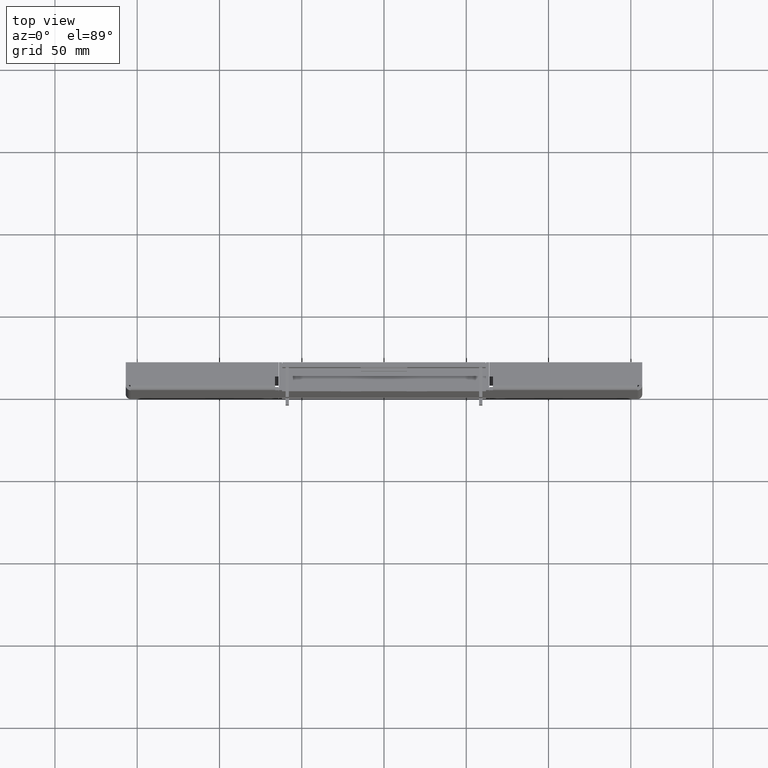
[diagram: clean part render]
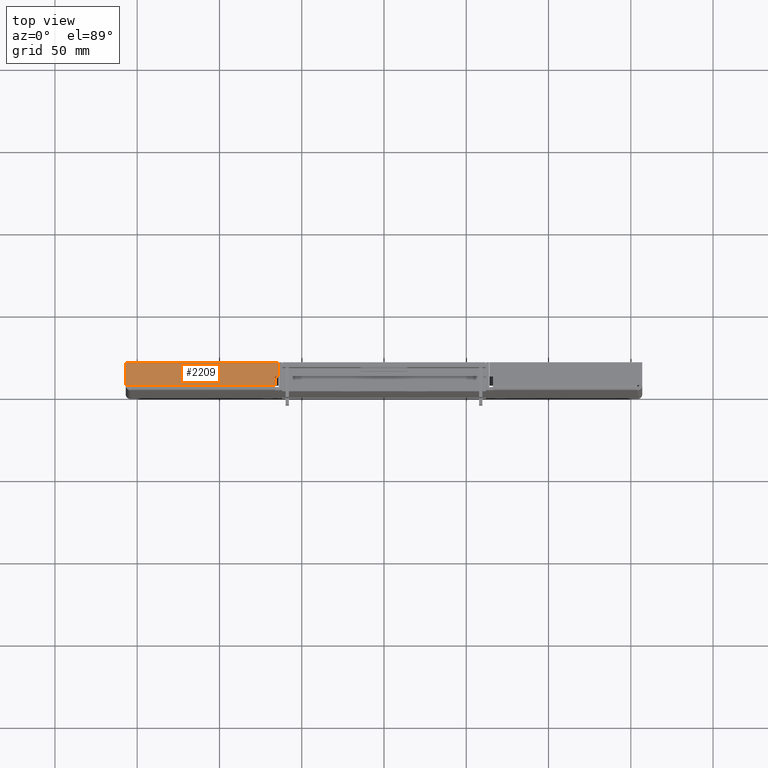
[diagram: same view with one face highlighted and labeled with its STEP entity id]
A machine part, top view. The second image highlights one B-rep face of the part: STEP entity #2209.
In plain terms, the highlighted planar face has unit normal (0, 0, 1).
Its self-contained STEP definition (entity closure, byte-faithful):
#426=DIRECTION('',(-1.E0,0.E0,0.E0));
#427=VECTOR('',#426,8.78E1);
#428=CARTESIAN_POINT('',(1.54E2,3.E0,-1.57E2));
#429=LINE('',#428,#427);
#630=DIRECTION('',(1.E0,0.E0,0.E0));
#631=VECTOR('',#630,2.05E0);
#632=CARTESIAN_POINT('',(6.415E1,8.1E0,-1.57E2));
#633=LINE('',#632,#631);
#634=DIRECTION('',(0.E0,-1.E0,0.E0));
#635=VECTOR('',#634,5.1E0);
#636=CARTESIAN_POINT('',(6.62E1,8.1E0,-1.57E2));
#637=LINE('',#636,#635);
#638=DIRECTION('',(-1.E0,0.E0,0.E0));
#639=VECTOR('',#638,9.285E1);
#640=CARTESIAN_POINT('',(1.57E2,1.7E1,-1.57E2));
#641=LINE('',#640,#639);
#642=DIRECTION('',(0.E0,-1.E0,0.E0));
#643=VECTOR('',#642,8.9E0);
#644=CARTESIAN_POINT('',(6.415E1,1.7E1,-1.57E2));
#645=LINE('',#644,#643);
#654=DIRECTION('',(-1.E0,0.E0,0.E0));
#655=VECTOR('',#654,3.E0);
#656=CARTESIAN_POINT('',(1.57E2,3.E0,-1.57E2));
#657=LINE('',#656,#655);
#662=DIRECTION('',(0.E0,-1.E0,0.E0));
#663=VECTOR('',#662,1.4E1);
#664=CARTESIAN_POINT('',(1.57E2,1.7E1,-1.57E2));
#665=LINE('',#664,#663);
#1620=CARTESIAN_POINT('',(6.62E1,3.E0,-1.57E2));
#1621=VERTEX_POINT('',#1620);
#1624=CARTESIAN_POINT('',(1.54E2,3.E0,-1.57E2));
#1625=VERTEX_POINT('',#1624);
#1746=CARTESIAN_POINT('',(6.415E1,8.1E0,-1.57E2));
#1747=CARTESIAN_POINT('',(6.62E1,8.1E0,-1.57E2));
#1748=VERTEX_POINT('',#1746);
#1749=VERTEX_POINT('',#1747);
#1750=CARTESIAN_POINT('',(1.57E2,3.E0,-1.57E2));
#1751=VERTEX_POINT('',#1750);
#1752=CARTESIAN_POINT('',(1.57E2,1.7E1,-1.57E2));
#1753=VERTEX_POINT('',#1752);
#1754=CARTESIAN_POINT('',(6.415E1,1.7E1,-1.57E2));
#1755=VERTEX_POINT('',#1754);
#2190=CARTESIAN_POINT('',(-3.65904E1,0.E0,-1.57E2));
#2191=DIRECTION('',(0.E0,0.E0,-1.E0));
#2192=DIRECTION('',(-1.E0,0.E0,0.E0));
#2193=AXIS2_PLACEMENT_3D('',#2190,#2191,#2192);
#2194=PLANE('',#2193);
#2195=ORIENTED_EDGE('',*,*,#2180,.T.);
#2197=ORIENTED_EDGE('',*,*,#2196,.T.);
#2198=ORIENTED_EDGE('',*,*,#1923,.F.);
#2200=ORIENTED_EDGE('',*,*,#2199,.F.);
#2202=ORIENTED_EDGE('',*,*,#2201,.F.);
#2204=ORIENTED_EDGE('',*,*,#2203,.T.);
#2206=ORIENTED_EDGE('',*,*,#2205,.T.);
#2207=EDGE_LOOP('',(#2195,#2197,#2198,#2200,#2202,#2204,#2206));
#2208=FACE_OUTER_BOUND('',#2207,.F.);
#1923=EDGE_CURVE('',#1625,#1621,#429,.T.);
#2180=EDGE_CURVE('',#1748,#1749,#633,.T.);
#2196=EDGE_CURVE('',#1749,#1621,#637,.T.);
#2199=EDGE_CURVE('',#1751,#1625,#657,.T.);
#2201=EDGE_CURVE('',#1753,#1751,#665,.T.);
#2203=EDGE_CURVE('',#1753,#1755,#641,.T.);
#2205=EDGE_CURVE('',#1755,#1748,#645,.T.);
#2209=ADVANCED_FACE('',(#2208),#2194,.T.);